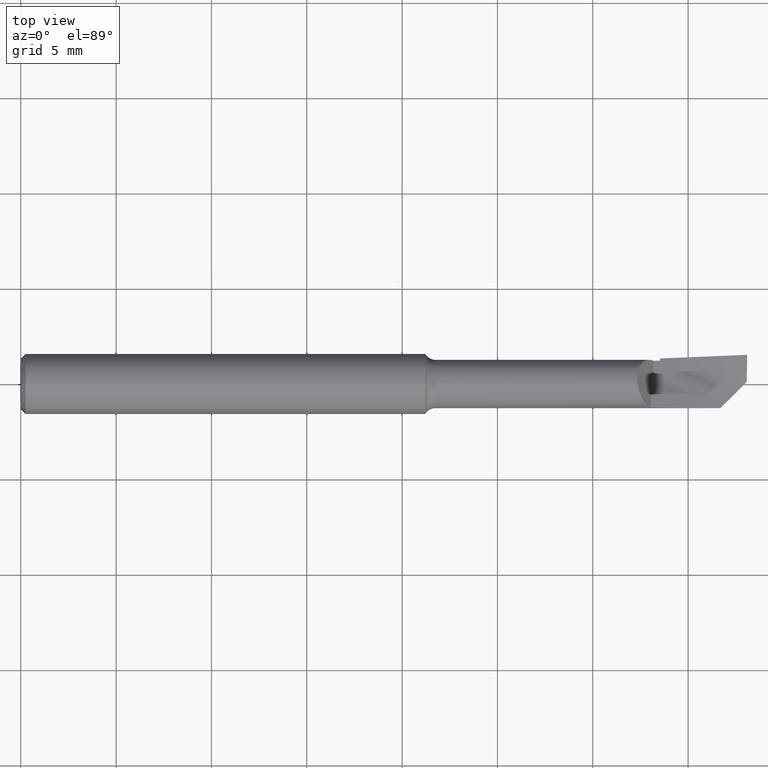
[diagram: clean part render]
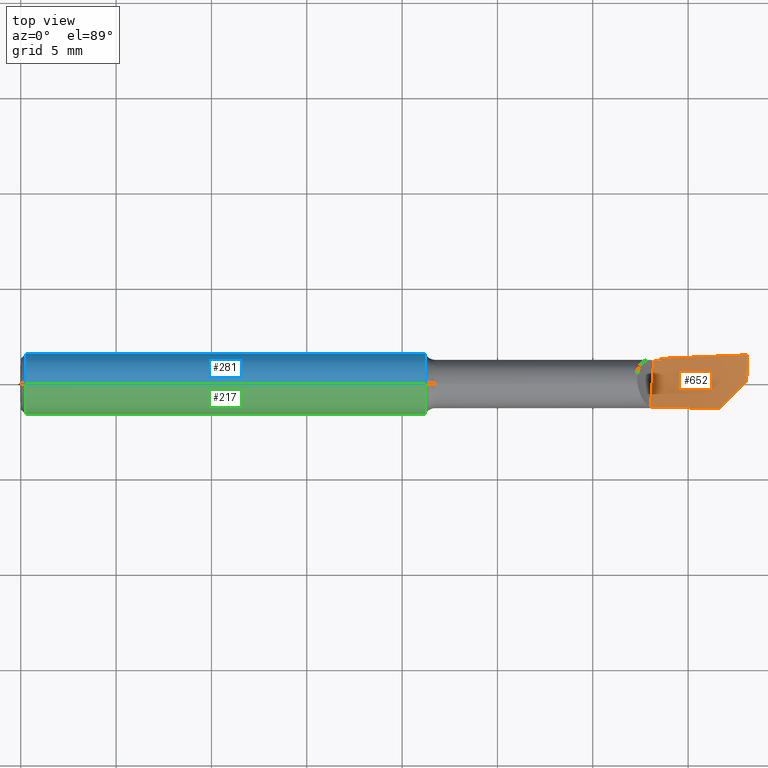
[diagram: same view with three faces highlighted in distinct colors, each labeled with its STEP entity id]
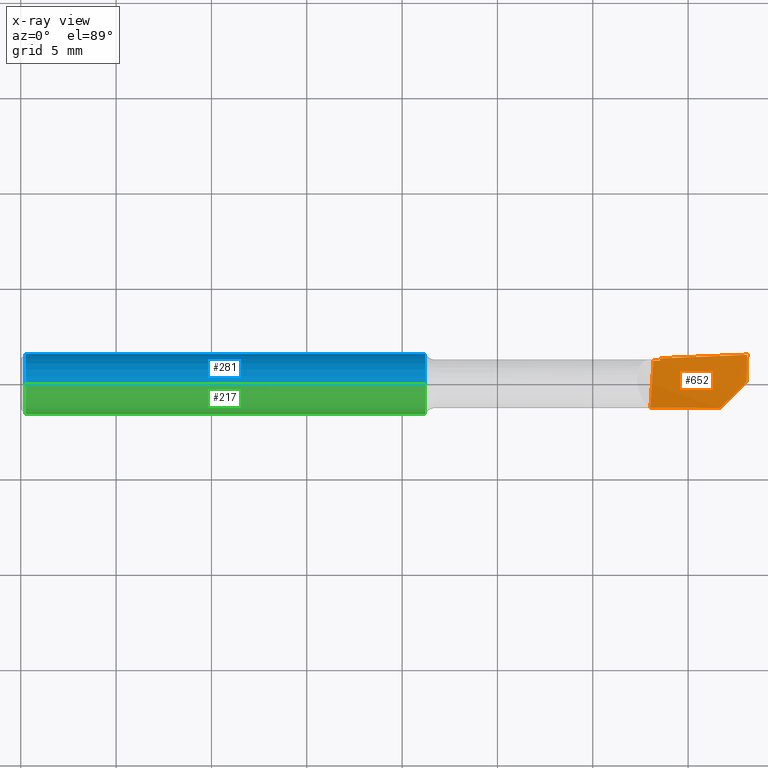
[diagram: x-ray of the same camera — body ghosted, the three highlighted faces saturated]
A machine part, top view with three faces highlighted in distinct colors.
The next image is the same camera in x-ray (body ghosted, the three faces saturated) — at least one of them is partly hidden behind the body in this view.
Their STEP definitions:

[orange] entity #652 — the highlighted face is a freeform B-spline surface patch.
#11 = CARTESIAN_POINT ( 'NONE',  ( 1.319999999999999840, 0.04998880411087137238, -0.01237900434958046948 ) ) ;
#20 = CARTESIAN_POINT ( 'NONE',  ( 1.500000000000000000, 0.03809952085550589312, -0.007979256663848445508 ) ) ;
#24 = CARTESIAN_POINT ( 'NONE',  ( 1.500000000000000222, -0.1123499999999997417, 0.009142668008615833369 ) ) ;
#29 = CARTESIAN_POINT ( 'NONE',  ( 1.499073689650320063, 0.005086649904279552659, -0.003623339469795202467 ) ) ;
#40 = ORIENTED_EDGE ( 'NONE', *, *, #295, .T. ) ;
#41 = CARTESIAN_POINT ( 'NONE',  ( 1.372134394488186082, -0.04973365691441448966, 0.006823797599040678542 ) ) ;
#44 = CARTESIAN_POINT ( 'NONE',  ( 1.440020333537398667, 0.05831592638305176796, -0.004774228934065402434 ) ) ;
#64 = CARTESIAN_POINT ( 'NONE',  ( 0.9385185185185199730, 0.09194188689983287532, -0.06521349792500083509 ) ) ;
#72 = CARTESIAN_POINT ( 'NONE',  ( 1.380017022021224005, 0.05585438051472550736, -0.009012194645226781139 ) ) ;
#79 = FACE_OUTER_BOUND ( 'NONE', #345, .T. ) ;
#88 = CARTESIAN_POINT ( 'NONE',  ( 1.320000000000000062, 0.05298751832235817222, -0.01273037563012554933 ) ) ;
#91 = CARTESIAN_POINT ( 'NONE',  ( 1.480606963987902036, -0.01338007575813865077, -0.003907098253927653551 ) ) ;
#106 = CARTESIAN_POINT ( 'NONE',  ( 1.304438552170990473, 0.01524796768859789514, -0.008475194891751235485 ) ) ;
#154 =( BOUNDED_CURVE ( )  B_SPLINE_CURVE ( 2, ( #517, #193, #635 ),
 .UNSPECIFIED., .F., .F. ) 
 B_SPLINE_CURVE_WITH_KNOTS ( ( 3, 3 ),
 ( 0.6562066243744422156, 0.6799135259352183658 ),
 .UNSPECIFIED. ) 
 CURVE ( )  GEOMETRIC_REPRESENTATION_ITEM ( )  RATIONAL_B_SPLINE_CURVE ( ( 0.9832334983342112533, 0.9829660379099344203, 0.9827661798926232706 ) ) 
 REPRESENTATION_ITEM ( '' )  );
#165 = CARTESIAN_POINT ( 'NONE',  ( 1.219259259259259931, 0.03307277209559596892, -0.02052885219001459802 ) ) ;
#168 = CARTESIAN_POINT ( 'NONE',  ( 1.078888888888890119, -0.03755533113105855025, 0.01232679313948632088 ) ) ;
#186 = ORIENTED_EDGE ( 'NONE', *, *, #400, .F. ) ;
#193 = CARTESIAN_POINT ( 'NONE',  ( 1.313307016291270557, 0.04838941676514681156, -0.01259508402390933923 ) ) ;
#196 = CARTESIAN_POINT ( 'NONE',  ( 1.499073689650320063, 0.005086649904279552659, -0.003623339469795202467 ) ) ;
#197 =( BOUNDED_CURVE ( )  B_SPLINE_CURVE ( 3, ( #484, #11, #431, #647 ),
 .UNSPECIFIED., .F., .F. ) 
 B_SPLINE_CURVE_WITH_KNOTS ( ( 4, 4 ),
 ( 0.002864310017421631098, 0.002979249508196540192 ),
 .UNSPECIFIED. ) 
 CURVE ( )  GEOMETRIC_REPRESENTATION_ITEM ( )  RATIONAL_B_SPLINE_CURVE ( ( 0.9827661798926234926, 0.9829149142859049393, 0.9830703882117020065, 0.9832326016700145832 ) ) 
 REPRESENTATION_ITEM ( '' )  );
#220 = CARTESIAN_POINT ( 'NONE',  ( 1.500000000000000000, -0.03809952085550570577, -0.007979256663848447242 ) ) ;
#223 = CARTESIAN_POINT ( 'NONE',  ( 1.078888888888890119, 0.02945298157152033761, -0.02636047423729021358 ) ) ;
#224 = B_SPLINE_CURVE_WITH_KNOTS ( 'NONE', 3,
 ( #591, #106, #434, #421 ),
 .UNSPECIFIED., .F., .F.,
 ( 4, 4 ),
 ( 0.000000000000000000, 1.000000000000000000 ),
 .UNSPECIFIED. ) ;
#227 = EDGE_CURVE ( 'NONE', #619, #440, #197, .T. ) ;
#230 = CARTESIAN_POINT ( 'NONE',  ( 1.462263290948581540, -0.03172374879745755438, -0.001913391219986970660 ) ) ;
#233 = CARTESIAN_POINT ( 'NONE',  ( 1.444042603293461458, -0.04994443645257963527, 0.002356537170136629739 ) ) ;
#235 = CARTESIAN_POINT ( 'NONE',  ( 1.078888888888890119, 0.1034407860903860665, -0.04900166260731412399 ) ) ;
#236 = ORIENTED_EDGE ( 'NONE', *, *, #350, .F. ) ;
#244 = ORIENTED_EDGE ( 'NONE', *, *, #565, .T. ) ;
#245 = CARTESIAN_POINT ( 'NONE',  ( 1.499254765950744694, 0.02348509594916605922, -0.003456260539687320502 ) ) ;
#280 =( BOUNDED_CURVE ( )  B_SPLINE_CURVE ( 2, ( #233, #41, #457 ),
 .UNSPECIFIED., .F., .F. ) 
 B_SPLINE_CURVE_WITH_KNOTS ( ( 3, 3 ),
 ( 0.1003933037384417970, 0.3554884400978503001 ),
 .UNSPECIFIED. ) 
 CURVE ( )  GEOMETRIC_REPRESENTATION_ITEM ( )  RATIONAL_B_SPLINE_CURVE ( ( 0.9848675701160670704, 0.9802770089604164738, 0.9835138369071867448 ) ) 
 REPRESENTATION_ITEM ( '' )  );
#284 = CARTESIAN_POINT ( 'NONE',  ( 0.9385185185185199730, -0.03431489355488628878, 0.01837743471335178888 ) ) ;
#286 = VERTEX_POINT ( 'NONE', #690 ) ;
#288 = B_SPLINE_CURVE_WITH_KNOTS ( 'NONE', 3,
 ( #29, #91, #230, #452 ),
 .UNSPECIFIED., .F., .F.,
 ( 4, 4 ),
 ( 3.314603057009250244E-05, 0.002015745591153740319 ),
 .UNSPECIFIED. ) ;
#292 = CARTESIAN_POINT ( 'NONE',  ( 1.078888888888890119, -0.09415707769080093603, 0.06508151723804914135 ) ) ;
#295 = EDGE_CURVE ( 'NONE', #594, #440, #602, .T. ) ;
#299 = CARTESIAN_POINT ( 'NONE',  ( 1.499561649755534853, 0.04187303682507321351, -0.002263854102581403047 ) ) ;
#319 = VERTEX_POINT ( 'NONE', #196 ) ;
#332 = CARTESIAN_POINT ( 'NONE',  ( 0.9385185185185199730, -0.08018829946900121741, 0.07922087797156433797 ) ) ;
#345 = EDGE_LOOP ( 'NONE', ( #186, #40, #627, #616, #244, #503, #236 ) ) ;
#350 = EDGE_CURVE ( 'NONE', #319, #398, #288, .T. ) ;
#369 = VERTEX_POINT ( 'NONE', #397 ) ;
#379 = EDGE_CURVE ( 'NONE', #398, #369, #280, .T. ) ;
#387 = CARTESIAN_POINT ( 'NONE',  ( 1.500000000000000222, 0.06024999999999999800, 0.000000000000000000 ) ) ;
#390 = CARTESIAN_POINT ( 'NONE',  ( 1.219259259259259931, -0.03853090511119927619, 0.005532754977264195753 ) ) ;
#397 = CARTESIAN_POINT ( 'NONE',  ( 1.300027689044524370, -0.04873342121103083069, 0.01118273924708299005 ) ) ;
#398 = VERTEX_POINT ( 'NONE', #671 ) ;
#400 = EDGE_CURVE ( 'NONE', #594, #319, #442, .T. ) ;
#411 = EDGE_CURVE ( 'NONE', #286, #619, #154, .T. ) ;
#421 = CARTESIAN_POINT ( 'NONE',  ( 1.300027689044524370, -0.04873342121103083069, 0.01118273924708299005 ) ) ;
#426 =( BOUNDED_SURFACE ( )  B_SPLINE_SURFACE ( 3, 2, ( 
 ( #24, #508, #441, #292, #332 ),
 ( #220, #559, #390, #168, #284 ),
 ( #20, #658, #165, #223, #446 ),
 ( #550, #655, #541, #235, #64 ) ),
 .UNSPECIFIED., .F., .F., .F. ) 
 B_SPLINE_SURFACE_WITH_KNOTS ( ( 4, 4 ),
 ( 3, 2, 3 ),
 ( 0.000000000000000000, 1.000000000000000000 ),
 ( 0.000000000000000000, 0.5000000000000000000, 1.000000000000000000 ),
 .UNSPECIFIED. ) 
 GEOMETRIC_REPRESENTATION_ITEM ( )  RATIONAL_B_SPLINE_SURFACE ( (
 ( 1.000000000000000000, 0.9848077530122080203, 1.000000000000000000, 0.9848077530122080203, 1.000000000000000000),
 ( 0.9829519941216796619, 0.9680187446498405013, 0.9829519941216796619, 0.9680187446498405013, 0.9829519941216796619),
 ( 0.9829519941216796619, 0.9680187446498405013, 0.9829519941216796619, 0.9680187446498405013, 0.9829519941216796619),
 ( 1.000000000000000000, 0.9848077530122080203, 1.000000000000000000, 0.9848077530122080203, 1.000000000000000000) ) ) 
 REPRESENTATION_ITEM ( '' )  SURFACE ( )  );
#431 = CARTESIAN_POINT ( 'NONE',  ( 1.319999999999999840, 0.05148782273268972393, -0.01255809171565604350 ) ) ;
#434 = CARTESIAN_POINT ( 'NONE',  ( 1.302257725747495654, -0.01744192223545633011, -0.0003292734783660051091 ) ) ;
#440 = VERTEX_POINT ( 'NONE', #579 ) ;
#441 = CARTESIAN_POINT ( 'NONE',  ( 1.219259259259259931, -0.1024474893226107741, 0.04701726076463048909 ) ) ;
#442 = B_SPLINE_CURVE_WITH_KNOTS ( 'NONE', 3,
 ( #618, #299, #245, #521 ),
 .UNSPECIFIED., .F., .F.,
 ( 4, 4 ),
 ( 3.035887530912417156E-18, 0.001402087289180600034 ),
 .UNSPECIFIED. ) ;
#446 = CARTESIAN_POINT ( 'NONE',  ( 0.9385185185185199730, 0.02405695891882537324, -0.03060236516847426175 ) ) ;
#452 = CARTESIAN_POINT ( 'NONE',  ( 1.444042603293461458, -0.04994443645257963527, 0.002356537170136629739 ) ) ;
#457 = CARTESIAN_POINT ( 'NONE',  ( 1.300027689044524370, -0.04873342121103083069, 0.01118273924708299005 ) ) ;
#484 = CARTESIAN_POINT ( 'NONE',  ( 1.319999999999999618, 0.04849049361772995309, -0.01219311398736564432 ) ) ;
#498 = CARTESIAN_POINT ( 'NONE',  ( 1.319999999999999618, 0.04849049361772995309, -0.01219311398736564432 ) ) ;
#503 = ORIENTED_EDGE ( 'NONE', *, *, #379, .F. ) ;
#508 = CARTESIAN_POINT ( 'NONE',  ( 1.359629629629630410, -0.1107379009544206538, 0.02895300429121183336 ) ) ;
#517 = CARTESIAN_POINT ( 'NONE',  ( 1.306620398593143495, 0.04828168986590251899, -0.01299532314691743094 ) ) ;
#521 = CARTESIAN_POINT ( 'NONE',  ( 1.499073689650320063, 0.005086649904279552659, -0.003623339469795202467 ) ) ;
#541 = CARTESIAN_POINT ( 'NONE',  ( 1.219259259259259931, 0.1087014425679825452, -0.02983466544064716092 ) ) ;
#550 = CARTESIAN_POINT ( 'NONE',  ( 1.500000000000000222, 0.1123499999999999360, 0.009142668008615833369 ) ) ;
#559 = CARTESIAN_POINT ( 'NONE',  ( 1.359629629629629965, -0.03950647909134000213, -0.001261283184957931978 ) ) ;
#565 = EDGE_CURVE ( 'NONE', #286, #369, #224, .T. ) ;
#579 = CARTESIAN_POINT ( 'NONE',  ( 1.320000000000000062, 0.05298751832235817222, -0.01273037563012554933 ) ) ;
#591 = CARTESIAN_POINT ( 'NONE',  ( 1.306620398593143495, 0.04828168986590251899, -0.01299532314691743094 ) ) ;
#594 = VERTEX_POINT ( 'NONE', #387 ) ;
#602 = B_SPLINE_CURVE_WITH_KNOTS ( 'NONE', 3,
 ( #631, #44, #72, #88 ),
 .UNSPECIFIED., .F., .F.,
 ( 4, 4 ),
 ( 6.963279384246876164E-18, 0.004587269164907508377 ),
 .UNSPECIFIED. ) ;
#616 = ORIENTED_EDGE ( 'NONE', *, *, #411, .F. ) ;
#618 = CARTESIAN_POINT ( 'NONE',  ( 1.500000000000000222, 0.06024999999999999800, 0.000000000000000000 ) ) ;
#619 = VERTEX_POINT ( 'NONE', #498 ) ;
#627 = ORIENTED_EDGE ( 'NONE', *, *, #227, .F. ) ;
#631 = CARTESIAN_POINT ( 'NONE',  ( 1.500000000000000222, 0.06024999999999999800, 0.000000000000000000 ) ) ;
#635 = CARTESIAN_POINT ( 'NONE',  ( 1.319999999999999618, 0.04849049361772995309, -0.01219311398736564432 ) ) ;
#647 = CARTESIAN_POINT ( 'NONE',  ( 1.320000000000000062, 0.05298751832235817222, -0.01273037563012554933 ) ) ;
#652 = ADVANCED_FACE ( 'NONE', ( #79 ), #426, .T. ) ;
#655 = CARTESIAN_POINT ( 'NONE',  ( 1.359629629629630410, 0.1139620990455790656, -0.01066766827398019264 ) ) ;
#658 = CARTESIAN_POINT ( 'NONE',  ( 1.359629629629629965, 0.03669256261967160371, -0.01469723014273899633 ) ) ;
#671 = CARTESIAN_POINT ( 'NONE',  ( 1.444042603293461458, -0.04994443645257963527, 0.002356537170136629739 ) ) ;
#690 = CARTESIAN_POINT ( 'NONE',  ( 1.306620398593143495, 0.04828168986590251899, -0.01299532314691743094 ) ) ;

[blue] entity #281 — the highlighted cylindrical surface (edge-blend (fillet) strip) has radius 1.5837 mm, axis along (-1, -0, -0).
#18 = CARTESIAN_POINT ( 'NONE',  ( 0.8350000000000000755, 0.000000000000000000, 0.000000000000000000 ) ) ;
#46 = CIRCLE ( 'NONE', #491, 0.06235000000000000264 ) ;
#103 = DIRECTION ( 'NONE',  ( -1.000000000000000000, -0.000000000000000000, -0.000000000000000000 ) ) ;
#130 = VERTEX_POINT ( 'NONE', #208 ) ;
#141 = CARTESIAN_POINT ( 'NONE',  ( 0.000000000000000000, 0.000000000000000000, 0.000000000000000000 ) ) ;
#151 = EDGE_CURVE ( 'NONE', #464, #130, #46, .T. ) ;
#182 = ORIENTED_EDGE ( 'NONE', *, *, #463, .T. ) ;
#189 = VECTOR ( 'NONE', #103, 39.37007874015748143 ) ;
#208 = CARTESIAN_POINT ( 'NONE',  ( 0.8350000000000000755, 0.000000000000000000, 0.06235000000000000264 ) ) ;
#214 = VECTOR ( 'NONE', #348, 39.37007874015748143 ) ;
#249 = CARTESIAN_POINT ( 'NONE',  ( 0.000000000000000000, 0.000000000000000000, 0.06235000000000000264 ) ) ;
#262 = CIRCLE ( 'NONE', #544, 0.06235000000000000264 ) ;
#274 = DIRECTION ( 'NONE',  ( -1.000000000000000000, -0.000000000000000000, -0.000000000000000000 ) ) ;
#276 = DIRECTION ( 'NONE',  ( 1.000000000000000000, 0.000000000000000000, 0.000000000000000000 ) ) ;
#281 = ADVANCED_FACE ( 'NONE', ( #615 ), #308, .T. ) ;
#283 = EDGE_LOOP ( 'NONE', ( #391, #182, #328, #437 ) ) ;
#291 = LINE ( 'NONE', #249, #214 ) ;
#300 = EDGE_CURVE ( 'NONE', #130, #333, #291, .T. ) ;
#308 = CYLINDRICAL_SURFACE ( 'NONE', #479, 0.06235000000000000264 ) ;
#328 = ORIENTED_EDGE ( 'NONE', *, *, #598, .F. ) ;
#333 = VERTEX_POINT ( 'NONE', #473 ) ;
#346 = DIRECTION ( 'NONE',  ( 0.000000000000000000, 0.000000000000000000, 1.000000000000000000 ) ) ;
#348 = DIRECTION ( 'NONE',  ( -1.000000000000000000, -0.000000000000000000, -0.000000000000000000 ) ) ;
#361 = DIRECTION ( 'NONE',  ( 0.000000000000000000, 0.000000000000000000, 1.000000000000000000 ) ) ;
#364 = DIRECTION ( 'NONE',  ( -1.000000000000000000, -0.000000000000000000, -0.000000000000000000 ) ) ;
#372 = LINE ( 'NONE', #486, #189 ) ;
#383 = CARTESIAN_POINT ( 'NONE',  ( 0.01000000000000000021, 7.635672792683746671E-18, -0.06235000000000000264 ) ) ;
#391 = ORIENTED_EDGE ( 'NONE', *, *, #151, .F. ) ;
#437 = ORIENTED_EDGE ( 'NONE', *, *, #300, .F. ) ;
#463 = EDGE_CURVE ( 'NONE', #464, #587, #372, .T. ) ;
#464 = VERTEX_POINT ( 'NONE', #489 ) ;
#473 = CARTESIAN_POINT ( 'NONE',  ( 0.01000000000000000021, 0.000000000000000000, 0.06235000000000000264 ) ) ;
#479 = AXIS2_PLACEMENT_3D ( 'NONE', #141, #364, #361 ) ;
#486 = CARTESIAN_POINT ( 'NONE',  ( 0.000000000000000000, 7.635672792683746671E-18, -0.06235000000000000264 ) ) ;
#489 = CARTESIAN_POINT ( 'NONE',  ( 0.8350000000000000755, 7.635672792683746671E-18, -0.06235000000000000264 ) ) ;
#491 = AXIS2_PLACEMENT_3D ( 'NONE', #18, #276, #533 ) ;
#533 = DIRECTION ( 'NONE',  ( 0.000000000000000000, 0.000000000000000000, -1.000000000000000000 ) ) ;
#544 = AXIS2_PLACEMENT_3D ( 'NONE', #662, #274, #346 ) ;
#587 = VERTEX_POINT ( 'NONE', #383 ) ;
#598 = EDGE_CURVE ( 'NONE', #333, #587, #262, .T. ) ;
#615 = FACE_OUTER_BOUND ( 'NONE', #283, .T. ) ;
#662 = CARTESIAN_POINT ( 'NONE',  ( 0.01000000000000000021, 0.000000000000000000, 0.000000000000000000 ) ) ;

[green] entity #217 — the highlighted cylindrical surface (edge-blend (fillet) strip) has radius 1.5837 mm, axis along (-1, -0, -0).
#10 = DIRECTION ( 'NONE',  ( -1.000000000000000000, -0.000000000000000000, -0.000000000000000000 ) ) ;
#19 = EDGE_LOOP ( 'NONE', ( #219, #341, #432, #82 ) ) ;
#25 = FACE_OUTER_BOUND ( 'NONE', #19, .T. ) ;
#82 = ORIENTED_EDGE ( 'NONE', *, *, #551, .F. ) ;
#103 = DIRECTION ( 'NONE',  ( -1.000000000000000000, -0.000000000000000000, -0.000000000000000000 ) ) ;
#113 = DIRECTION ( 'NONE',  ( -1.000000000000000000, -0.000000000000000000, -0.000000000000000000 ) ) ;
#130 = VERTEX_POINT ( 'NONE', #208 ) ;
#162 = CARTESIAN_POINT ( 'NONE',  ( 0.000000000000000000, 0.000000000000000000, 0.000000000000000000 ) ) ;
#189 = VECTOR ( 'NONE', #103, 39.37007874015748143 ) ;
#208 = CARTESIAN_POINT ( 'NONE',  ( 0.8350000000000000755, 0.000000000000000000, 0.06235000000000000264 ) ) ;
#214 = VECTOR ( 'NONE', #348, 39.37007874015748143 ) ;
#217 = ADVANCED_FACE ( 'NONE', ( #25 ), #394, .T. ) ;
#219 = ORIENTED_EDGE ( 'NONE', *, *, #463, .F. ) ;
#249 = CARTESIAN_POINT ( 'NONE',  ( 0.000000000000000000, 0.000000000000000000, 0.06235000000000000264 ) ) ;
#270 = DIRECTION ( 'NONE',  ( 0.000000000000000000, 0.000000000000000000, 1.000000000000000000 ) ) ;
#285 = CARTESIAN_POINT ( 'NONE',  ( 0.8350000000000000755, 0.000000000000000000, 0.000000000000000000 ) ) ;
#291 = LINE ( 'NONE', #249, #214 ) ;
#300 = EDGE_CURVE ( 'NONE', #130, #333, #291, .T. ) ;
#325 = CARTESIAN_POINT ( 'NONE',  ( 0.01000000000000000021, 0.000000000000000000, 0.000000000000000000 ) ) ;
#333 = VERTEX_POINT ( 'NONE', #473 ) ;
#341 = ORIENTED_EDGE ( 'NONE', *, *, #357, .F. ) ;
#348 = DIRECTION ( 'NONE',  ( -1.000000000000000000, -0.000000000000000000, -0.000000000000000000 ) ) ;
#357 = EDGE_CURVE ( 'NONE', #130, #464, #628, .T. ) ;
#372 = LINE ( 'NONE', #486, #189 ) ;
#383 = CARTESIAN_POINT ( 'NONE',  ( 0.01000000000000000021, 7.635672792683746671E-18, -0.06235000000000000264 ) ) ;
#394 = CYLINDRICAL_SURFACE ( 'NONE', #449, 0.06235000000000000264 ) ;
#412 = DIRECTION ( 'NONE',  ( 0.000000000000000000, 0.000000000000000000, -1.000000000000000000 ) ) ;
#424 = AXIS2_PLACEMENT_3D ( 'NONE', #325, #10, #270 ) ;
#432 = ORIENTED_EDGE ( 'NONE', *, *, #300, .T. ) ;
#449 = AXIS2_PLACEMENT_3D ( 'NONE', #162, #113, #611 ) ;
#463 = EDGE_CURVE ( 'NONE', #464, #587, #372, .T. ) ;
#464 = VERTEX_POINT ( 'NONE', #489 ) ;
#473 = CARTESIAN_POINT ( 'NONE',  ( 0.01000000000000000021, 0.000000000000000000, 0.06235000000000000264 ) ) ;
#486 = CARTESIAN_POINT ( 'NONE',  ( 0.000000000000000000, 7.635672792683746671E-18, -0.06235000000000000264 ) ) ;
#489 = CARTESIAN_POINT ( 'NONE',  ( 0.8350000000000000755, 7.635672792683746671E-18, -0.06235000000000000264 ) ) ;
#551 = EDGE_CURVE ( 'NONE', #587, #333, #567, .T. ) ;
#567 = CIRCLE ( 'NONE', #424, 0.06235000000000000264 ) ;
#587 = VERTEX_POINT ( 'NONE', #383 ) ;
#611 = DIRECTION ( 'NONE',  ( 0.000000000000000000, 0.000000000000000000, 1.000000000000000000 ) ) ;
#620 = AXIS2_PLACEMENT_3D ( 'NONE', #285, #668, #412 ) ;
#628 = CIRCLE ( 'NONE', #620, 0.06235000000000000264 ) ;
#668 = DIRECTION ( 'NONE',  ( 1.000000000000000000, 0.000000000000000000, 0.000000000000000000 ) ) ;